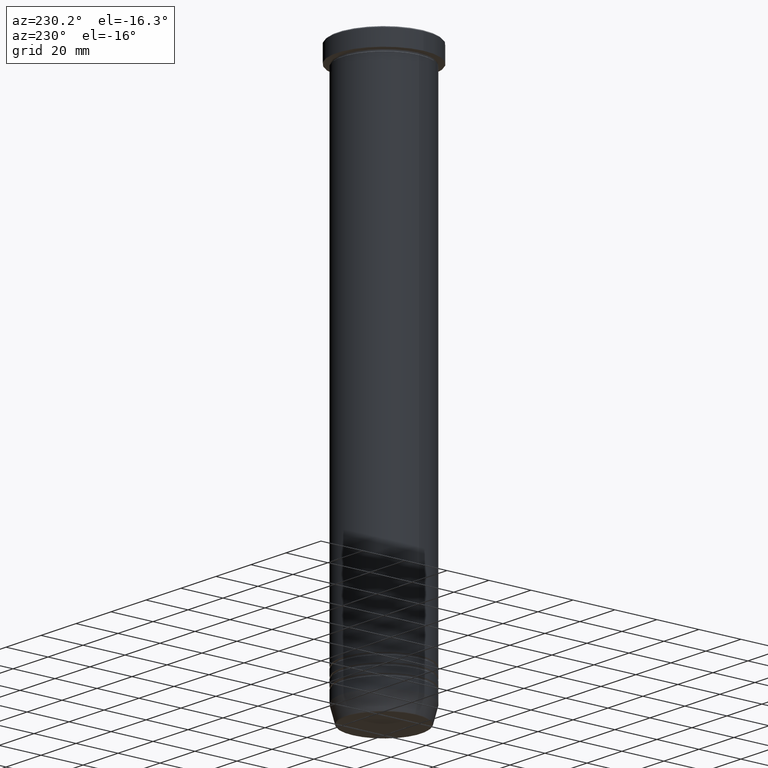
[diagram: clean part render]
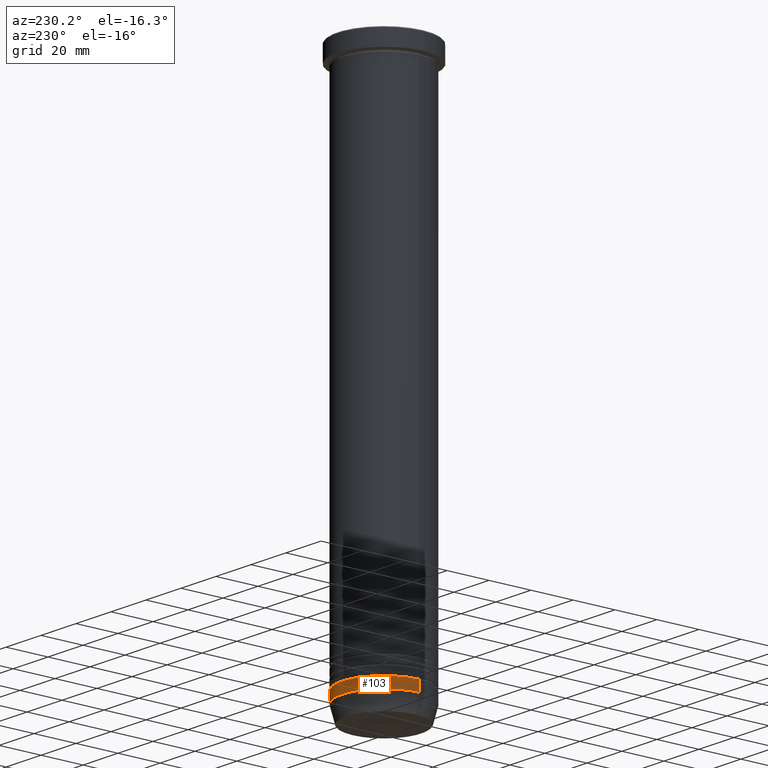
[diagram: same view with one face highlighted and labeled with its STEP entity id]
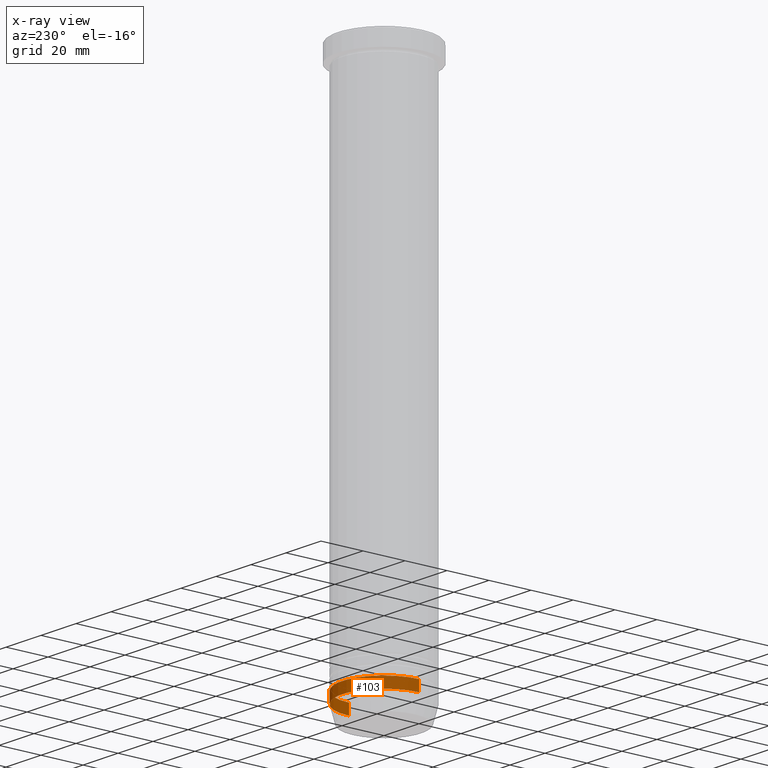
[diagram: x-ray of the same camera — body ghosted, the highlighted face saturated]
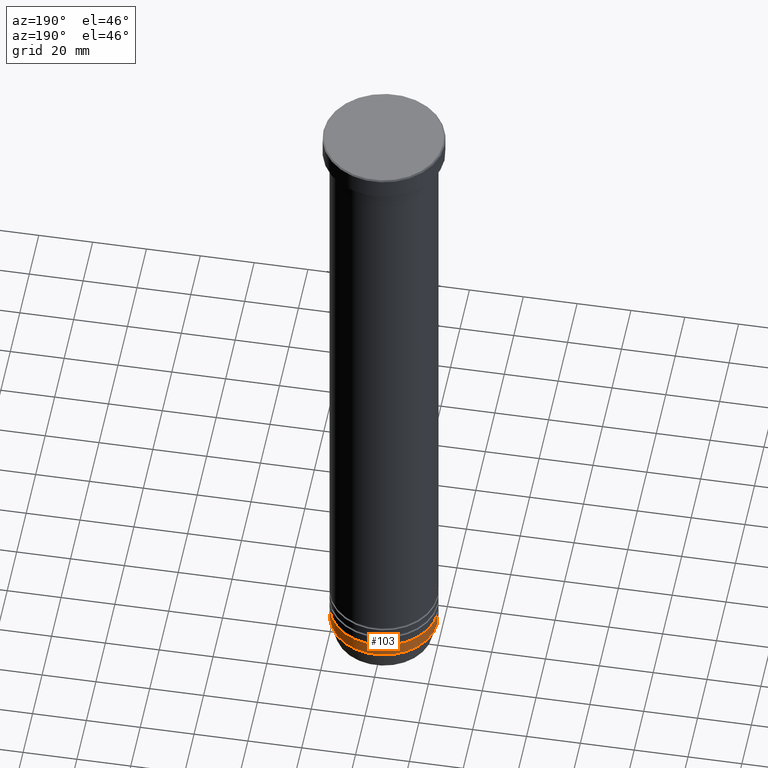
[diagram: same view with one face highlighted and labeled with its STEP entity id]
A machine part, auxiliary view. The second image highlights one B-rep face of the part: STEP entity #103.
The next image is the same camera in x-ray: the body ghosted, the highlighted face saturated — about 0% of this face is hidden behind the body in this view.
A second angle (auxiliary view) of the same face is appended — the face is thin or edge-on in the first view.
In plain terms, the highlighted cylindrical surface (partial cylindrical patch) has radius 20 mm, axis along (-0, -0, 1).
Its self-contained STEP definition (entity closure, byte-faithful):
#22 = DIRECTION ( 'NONE',  ( -0.000000000000000000, -0.000000000000000000, 1.000000000000000000 ) ) ;
#42 = EDGE_CURVE ( 'NONE', #102, #348, #536, .T. ) ;
#89 = VERTEX_POINT ( 'NONE', #614 ) ;
#102 = VERTEX_POINT ( 'NONE', #366 ) ;
#103 = ADVANCED_FACE ( 'NONE', ( #435 ), #937, .T. ) ;
#131 = DIRECTION ( 'NONE',  ( 1.000000000000000000, 0.000000000000000000, 0.000000000000000000 ) ) ;
#162 = LINE ( 'NONE', #1037, #618 ) ;
#181 = AXIS2_PLACEMENT_3D ( 'NONE', #207, #362, #760 ) ;
#183 = ORIENTED_EDGE ( 'NONE', *, *, #42, .F. ) ;
#189 = EDGE_CURVE ( 'NONE', #416, #89, #162, .T. ) ;
#197 = EDGE_CURVE ( 'NONE', #348, #89, #255, .T. ) ;
#207 = CARTESIAN_POINT ( 'NONE',  ( 0.000000000000000000, 0.000000000000000000, 0.000000000000000000 ) ) ;
#216 = CARTESIAN_POINT ( 'NONE',  ( -20.00000000000000000, 2.449293598294706513E-15, -251.9999999999999432 ) ) ;
#249 = DIRECTION ( 'NONE',  ( 1.000000000000000000, 0.000000000000000000, 0.000000000000000000 ) ) ;
#255 = CIRCLE ( 'NONE', #837, 20.00000000000000000 ) ;
#256 = EDGE_CURVE ( 'NONE', #102, #416, #343, .T. ) ;
#329 = DIRECTION ( 'NONE',  ( -0.000000000000000000, -0.000000000000000000, 1.000000000000000000 ) ) ;
#343 = CIRCLE ( 'NONE', #916, 20.00000000000000000 ) ;
#348 = VERTEX_POINT ( 'NONE', #635 ) ;
#362 = DIRECTION ( 'NONE',  ( -0.000000000000000000, -0.000000000000000000, 1.000000000000000000 ) ) ;
#366 = CARTESIAN_POINT ( 'NONE',  ( 20.00000000000000000, 0.000000000000000000, -251.9999999999999432 ) ) ;
#405 = DIRECTION ( 'NONE',  ( -0.000000000000000000, -0.000000000000000000, 1.000000000000000000 ) ) ;
#416 = VERTEX_POINT ( 'NONE', #216 ) ;
#435 = FACE_OUTER_BOUND ( 'NONE', #569, .T. ) ;
#442 = CARTESIAN_POINT ( 'NONE',  ( 20.00000000000000000, 0.000000000000000000, 0.000000000000000000 ) ) ;
#449 = DIRECTION ( 'NONE',  ( -0.000000000000000000, -0.000000000000000000, 1.000000000000000000 ) ) ;
#509 = VECTOR ( 'NONE', #449, 1000.000000000000000 ) ;
#536 = LINE ( 'NONE', #442, #509 ) ;
#569 = EDGE_LOOP ( 'NONE', ( #1013, #848, #758, #183 ) ) ;
#614 = CARTESIAN_POINT ( 'NONE',  ( -20.00000000000000000, 2.449293598294706513E-15, -246.9999999999999716 ) ) ;
#618 = VECTOR ( 'NONE', #405, 1000.000000000000000 ) ;
#635 = CARTESIAN_POINT ( 'NONE',  ( 20.00000000000000000, 0.000000000000000000, -246.9999999999999716 ) ) ;
#735 = CARTESIAN_POINT ( 'NONE',  ( 0.000000000000000000, 0.000000000000000000, -246.9999999999999716 ) ) ;
#758 = ORIENTED_EDGE ( 'NONE', *, *, #197, .F. ) ;
#760 = DIRECTION ( 'NONE',  ( 1.000000000000000000, 0.000000000000000000, 0.000000000000000000 ) ) ;
#837 = AXIS2_PLACEMENT_3D ( 'NONE', #735, #329, #249 ) ;
#845 = CARTESIAN_POINT ( 'NONE',  ( 0.000000000000000000, 0.000000000000000000, -251.9999999999999432 ) ) ;
#848 = ORIENTED_EDGE ( 'NONE', *, *, #189, .T. ) ;
#916 = AXIS2_PLACEMENT_3D ( 'NONE', #845, #22, #131 ) ;
#937 = CYLINDRICAL_SURFACE ( 'NONE', #181, 20.00000000000000000 ) ;
#1013 = ORIENTED_EDGE ( 'NONE', *, *, #256, .T. ) ;
#1037 = CARTESIAN_POINT ( 'NONE',  ( -20.00000000000000000, 2.449293598294706513E-15, 0.000000000000000000 ) ) ;